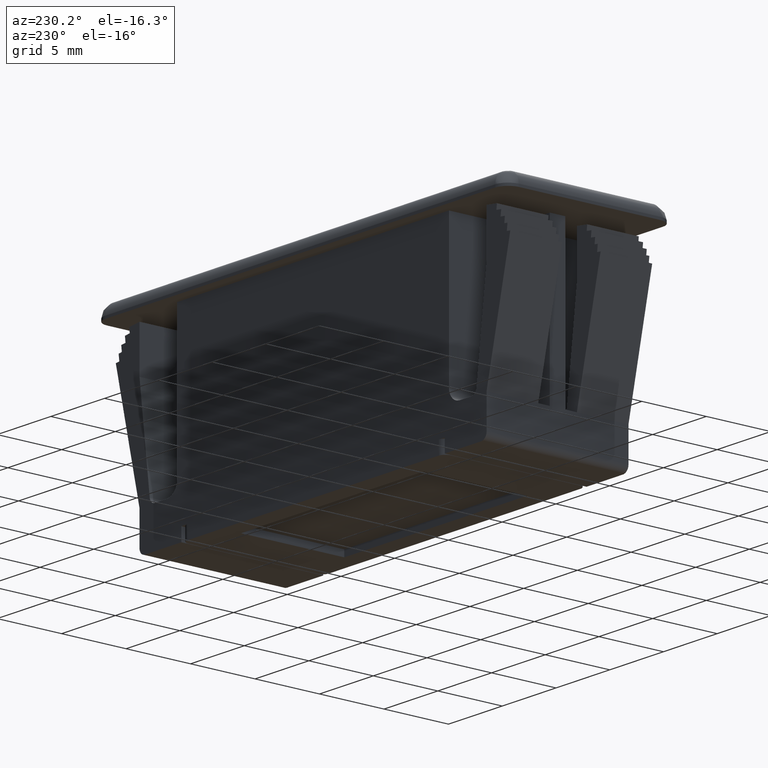
[diagram: clean part render]
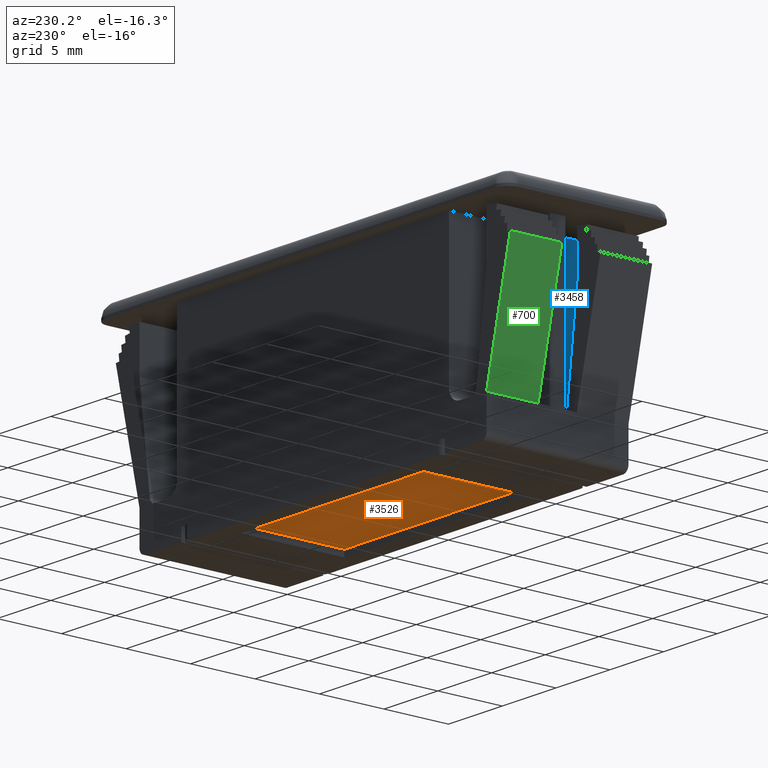
[diagram: same view with three faces highlighted in distinct colors, each labeled with its STEP entity id]
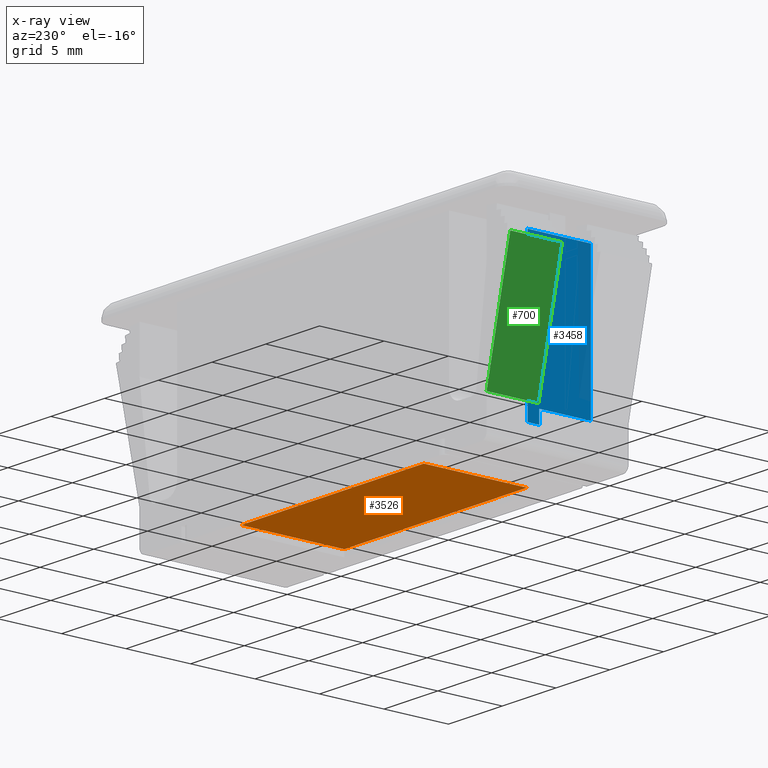
[diagram: x-ray of the same camera — body ghosted, the three highlighted faces saturated]
A machine part, auxiliary view with three faces highlighted in distinct colors.
The next image is the same camera in x-ray (body ghosted, the three faces saturated) — at least one of them is partly hidden behind the body in this view.
Their STEP definitions:

[orange] entity #3526 — the highlighted face is a freeform B-spline surface patch.
#3491=CARTESIAN_POINT('',(-9.349149967050700,-4.399581918830954,-15.699999999999999));
#3492=CARTESIAN_POINT('',(9.349150423026234,-4.399581918830954,-15.699999999999999));
#3493=CARTESIAN_POINT('',(-9.349149967050700,4.399618264734679,-15.699999999999999));
#3494=CARTESIAN_POINT('',(9.349150423026234,4.399618264734679,-15.699999999999999));
#3495=B_SPLINE_SURFACE_WITH_KNOTS('',1,1,((#3491,#3493),(#3492,#3494)),.UNSPECIFIED.,.F.,.F.,.U.,(2,2),(2,2),(0.0,18.698300390076930),(0.0,8.799200183565633),.UNSPECIFIED.);
#3496=CARTESIAN_POINT('',(-8.500000000000000,4.000018065663509,-15.699999999999999));
#3497=VERTEX_POINT('',#3496);
#3498=CARTESIAN_POINT('',(-8.500000000000000,-3.999981934336506,-15.699999999999999));
#3499=VERTEX_POINT('',#3498);
#3500=CARTESIAN_POINT('',(-8.500000000000000,4.000018065663509,-15.699999999999999));
#3501=CARTESIAN_POINT('',(-8.500000000000000,-3.999981934336506,-15.699999999999999));
#3502=QUASI_UNIFORM_CURVE('',1,(#3500,#3501),.UNSPECIFIED.,.F.,.U.);
#3503=EDGE_CURVE('',#3497,#3499,#3502,.T.);
#3504=ORIENTED_EDGE('',*,*,#3503,.F.);
#3505=CARTESIAN_POINT('',(8.500000000000000,4.000018065663509,-15.699999999999999));
#3506=VERTEX_POINT('',#3505);
#3507=CARTESIAN_POINT('',(8.500000000000000,4.000018065663509,-15.699999999999999));
#3508=CARTESIAN_POINT('',(-8.500000000000000,4.000018065663509,-15.699999999999999));
#3509=QUASI_UNIFORM_CURVE('',1,(#3507,#3508),.UNSPECIFIED.,.F.,.U.);
#3510=EDGE_CURVE('',#3506,#3497,#3509,.T.);
#3511=ORIENTED_EDGE('',*,*,#3510,.F.);
#3512=CARTESIAN_POINT('',(8.500000000000000,-3.999981934336506,-15.699999999999999));
#3513=VERTEX_POINT('',#3512);
#3514=CARTESIAN_POINT('',(8.500000000000000,-3.999981934336506,-15.699999999999999));
#3515=CARTESIAN_POINT('',(8.500000000000000,4.000018065663509,-15.699999999999999));
#3516=QUASI_UNIFORM_CURVE('',1,(#3514,#3515),.UNSPECIFIED.,.F.,.U.);
#3517=EDGE_CURVE('',#3513,#3506,#3516,.T.);
#3518=ORIENTED_EDGE('',*,*,#3517,.F.);
#3519=CARTESIAN_POINT('',(-8.500000000000000,-3.999981934336506,-15.699999999999999));
#3520=CARTESIAN_POINT('',(8.500000000000000,-3.999981934336506,-15.699999999999999));
#3521=QUASI_UNIFORM_CURVE('',1,(#3519,#3520),.UNSPECIFIED.,.F.,.U.);
#3522=EDGE_CURVE('',#3499,#3513,#3521,.T.);
#3523=ORIENTED_EDGE('',*,*,#3522,.F.);
#3524=EDGE_LOOP('',(#3504,#3511,#3518,#3523));
#3525=FACE_OUTER_BOUND('',#3524,.T.);
#3526=ADVANCED_FACE('',(#3525),#3495,.F.);

[blue] entity #3458 — the highlighted face is a freeform B-spline surface patch.
#779=CARTESIAN_POINT('',(-12.649999999994600,-0.599999999999938,-13.199999999916180));
#780=VERTEX_POINT('',#779);
#786=CARTESIAN_POINT('',(-12.649999999994600,-0.599999999999938,-1.199999999861916));
#787=VERTEX_POINT('',#786);
#788=CARTESIAN_POINT('',(-12.649999999994600,-0.599999999999938,-13.199999999916180));
#789=CARTESIAN_POINT('',(-12.649999999994600,-0.599999999999938,-1.199999999861916));
#790=QUASI_UNIFORM_CURVE('',1,(#788,#789),.UNSPECIFIED.,.F.,.U.);
#791=EDGE_CURVE('',#780,#787,#790,.T.);
#886=CARTESIAN_POINT('',(-12.649999999994380,-1.499999999999946,-12.199999999999999));
#887=VERTEX_POINT('',#886);
#888=CARTESIAN_POINT('',(-12.649999999994719,-1.499999999999942,-13.199999999915621));
#889=VERTEX_POINT('',#888);
#890=CARTESIAN_POINT('',(-12.649999999994380,-1.499999999999946,-12.199999999999999));
#891=CARTESIAN_POINT('',(-12.649999999994719,-1.499999999999942,-13.199999999915621));
#892=QUASI_UNIFORM_CURVE('',1,(#890,#891),.UNSPECIFIED.,.F.,.U.);
#893=EDGE_CURVE('',#887,#889,#892,.T.);
#1610=CARTESIAN_POINT('',(-12.649999999994380,-5.500000000000000,-12.199999999999999));
#1611=VERTEX_POINT('',#1610);
#1612=CARTESIAN_POINT('',(-12.649999999994360,-5.500000000000000,-1.200000000000016));
#1613=VERTEX_POINT('',#1612);
#1614=CARTESIAN_POINT('',(-12.649999999994380,-5.500000000000000,-12.199999999999999));
#1615=CARTESIAN_POINT('',(-12.649999999994360,-5.500000000000000,-1.200000000000016));
#1616=QUASI_UNIFORM_CURVE('',1,(#1614,#1615),.UNSPECIFIED.,.F.,.U.);
#1617=EDGE_CURVE('',#1611,#1613,#1616,.T.);
#3318=CARTESIAN_POINT('',(-12.649999999994380,-5.500000000000000,-12.199999999999999));
#3319=CARTESIAN_POINT('',(-12.649999999994380,-1.499999999999946,-12.199999999999999));
#3320=QUASI_UNIFORM_CURVE('',1,(#3318,#3319),.UNSPECIFIED.,.F.,.U.);
#3321=EDGE_CURVE('',#1611,#887,#3320,.T.);
#3408=CARTESIAN_POINT('',(-12.649999999994719,-1.499999999999942,-13.199999999915621));
#3409=CARTESIAN_POINT('',(-12.649999999994600,-0.599999999999938,-13.199999999916180));
#3410=QUASI_UNIFORM_CURVE('',1,(#3408,#3409),.UNSPECIFIED.,.F.,.U.);
#3411=EDGE_CURVE('',#889,#780,#3410,.T.);
#3441=CARTESIAN_POINT('',(-12.649999999994380,-5.744754990502852,-13.799399976660560));
#3442=CARTESIAN_POINT('',(-12.649999999994380,-5.744754990502852,-0.600599701252453));
#3443=CARTESIAN_POINT('',(-12.649999999994380,-0.355244878068844,-13.799399976660560));
#3444=CARTESIAN_POINT('',(-12.649999999994380,-0.355244878068844,-0.600599701252452));
#3445=B_SPLINE_SURFACE_WITH_KNOTS('',1,1,((#3441,#3443),(#3442,#3444)),.UNSPECIFIED.,.F.,.F.,.U.,(2,2),(2,2),(0.0,13.198800275408111),(0.0,5.389510112434008),.UNSPECIFIED.);
#3446=CARTESIAN_POINT('',(-12.649999999994360,-5.500000000000000,-1.200000000000016));
#3447=CARTESIAN_POINT('',(-12.649999999994600,-0.599999999999938,-1.199999999861916));
#3448=QUASI_UNIFORM_CURVE('',1,(#3446,#3447),.UNSPECIFIED.,.F.,.U.);
#3449=EDGE_CURVE('',#1613,#787,#3448,.T.);
#3450=ORIENTED_EDGE('',*,*,#3449,.T.);
#3451=ORIENTED_EDGE('',*,*,#791,.F.);
#3452=ORIENTED_EDGE('',*,*,#3411,.F.);
#3453=ORIENTED_EDGE('',*,*,#893,.F.);
#3454=ORIENTED_EDGE('',*,*,#3321,.F.);
#3455=ORIENTED_EDGE('',*,*,#1617,.T.);
#3456=EDGE_LOOP('',(#3450,#3451,#3452,#3453,#3454,#3455));
#3457=FACE_OUTER_BOUND('',#3456,.T.);
#3458=ADVANCED_FACE('',(#3457),#3445,.T.);

[green] entity #700 — the highlighted face is a freeform B-spline surface patch.
#622=CARTESIAN_POINT('',(-18.355931706625750,1.500000000000055,-3.720043686411410));
#623=VERTEX_POINT('',#622);
#624=CARTESIAN_POINT('',(-18.355931706625750,5.500000000000000,-3.720043686411400));
#625=VERTEX_POINT('',#624);
#626=CARTESIAN_POINT('',(-18.355931706625750,1.500000000000055,-3.720043686411410));
#627=CARTESIAN_POINT('',(-18.355931706625750,5.500000000000000,-3.720043686411400));
#628=QUASI_UNIFORM_CURVE('',1,(#626,#627),.UNSPECIFIED.,.F.,.U.);
#629=EDGE_CURVE('',#623,#625,#628,.T.);
#673=CARTESIAN_POINT('',(-16.039813715525550,1.300200007752834,-13.673523799403039));
#674=CARTESIAN_POINT('',(-18.466118050264051,1.300200007752834,-3.246519632653523));
#675=CARTESIAN_POINT('',(-16.039813715525550,5.699800099535582,-13.673523799403039));
#676=CARTESIAN_POINT('',(-18.466118050264051,5.699800099535582,-3.246519632653523));
#677=B_SPLINE_SURFACE_WITH_KNOTS('',1,1,((#673,#675),(#674,#676)),.UNSPECIFIED.,.F.,.F.,.U.,(2,2),(2,2),(0.0,10.705576519654731),(0.0,4.399600091782748),.UNSPECIFIED.);
#678=CARTESIAN_POINT('',(-16.149999999996300,1.500000000000055,-13.199999999917440));
#679=VERTEX_POINT('',#678);
#680=CARTESIAN_POINT('',(-16.150000000002951,5.500000000000000,-13.199999999901101));
#681=VERTEX_POINT('',#680);
#682=CARTESIAN_POINT('',(-16.149999999996300,1.500000000000055,-13.199999999917440));
#683=CARTESIAN_POINT('',(-16.150000000002951,5.500000000000000,-13.199999999901101));
#684=QUASI_UNIFORM_CURVE('',1,(#682,#683),.UNSPECIFIED.,.F.,.U.);
#685=EDGE_CURVE('',#679,#681,#684,.T.);
#686=ORIENTED_EDGE('',*,*,#685,.F.);
#687=CARTESIAN_POINT('',(-16.149999999996300,1.500000000000055,-13.199999999917440));
#688=CARTESIAN_POINT('',(-18.355931706625750,1.500000000000055,-3.720043686411410));
#689=QUASI_UNIFORM_CURVE('',1,(#687,#688),.UNSPECIFIED.,.F.,.U.);
#690=EDGE_CURVE('',#679,#623,#689,.T.);
#691=ORIENTED_EDGE('',*,*,#690,.T.);
#692=ORIENTED_EDGE('',*,*,#629,.T.);
#693=CARTESIAN_POINT('',(-16.150000000002951,5.500000000000000,-13.199999999901101));
#694=CARTESIAN_POINT('',(-18.355931706625750,5.500000000000000,-3.720043686411400));
#695=QUASI_UNIFORM_CURVE('',1,(#693,#694),.UNSPECIFIED.,.F.,.U.);
#696=EDGE_CURVE('',#681,#625,#695,.T.);
#697=ORIENTED_EDGE('',*,*,#696,.F.);
#698=EDGE_LOOP('',(#686,#691,#692,#697));
#699=FACE_OUTER_BOUND('',#698,.T.);
#700=ADVANCED_FACE('',(#699),#677,.T.);